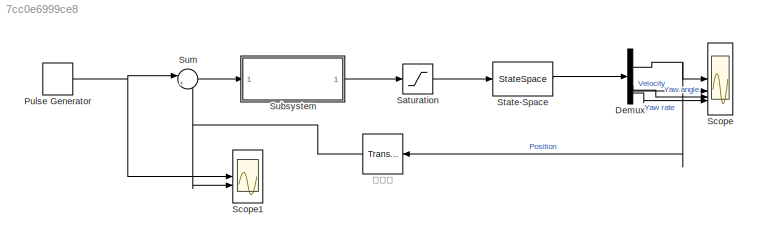
MODEL slx_7cc0e6999ce8
KIND model
CONFIG AbsTol = auto
CONFIG EnableMultiTasking = off
CONFIG FixedStep = 0.01
CONFIG MaxStep = auto
CONFIG MinStep = auto
CONFIG RelTol = 1e-3
CONFIG SampleTimeConstraint = Unconstrained
CONFIG SolverName = FixedStepAuto
CONFIG StartTime = 0.0
CONFIG StopTime = 10.0
BLOCK [Demux] Demux
BLOCK [DiscretePulseGenerator] Pulse Generator
  Amplitude = 4
  Period = 7
  PhaseDelay = 0.5
  PulseType = Time based
  PulseWidth = 50
BLOCK [Saturate] Saturation
  LowerLimit = -48.7
  UpperLimit = 48.7
BLOCK [Scope] Scope
  Floating = off
  NumInputPorts = 4
  ScopeSpecificationString = Simulink.scopes.TimeScopeBlockCfg('CurrentConfiguration', extmgr.ConfigurationSet(extmgr.Configuration('Core','General UI',true),extmgr.Configuration('Core','Source UI',true),extmgr.Configuration('Sources','WiredSimulink',true),extmgr.Configuration('Visuals','Time Domain',true,'SerializedDisplays',{struct('MinYLimReal','-1.34103','MaxYLimReal','5.34103','YLabelReal','','MinYLimMag','0.00000','MaxY...<+3780ch>
BLOCK [Scope] Scope1
  Floating = off
  NumInputPorts = 2
  ScopeSpecificationString = Simulink.scopes.TimeScopeBlockCfg('CurrentConfiguration', extmgr.ConfigurationSet(extmgr.Configuration('Core','General UI',true),extmgr.Configuration('Core','Source UI',true),extmgr.Configuration('Sources','WiredSimulink',true,'DataLoggingVariableName','ScopeData1'),extmgr.Configuration('Visuals','Time Domain',true,'SerializedDisplays',{struct('MinYLimReal','-2.01899','MaxYLimReal','6.01721','YLab...<+1481ch>
BLOCK [StateSpace] State-Space
  A = A
  B = B
  C = C
  D = D
  InitialCondition = 0
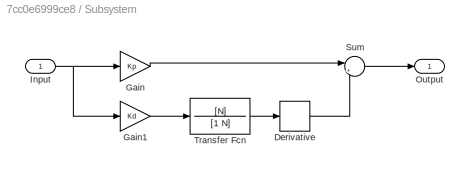
BLOCK [SubSystem] Subsystem
BLOCK [Derivative] Subsystem/Derivative
BLOCK [Gain] Subsystem/Gain
  Gain = Kp
BLOCK [Gain] Subsystem/Gain1
  Gain = Kd
BLOCK [Inport] Subsystem/Input
  IconDisplay = Signal name
BLOCK [Outport] Subsystem/Output
  IconDisplay = Signal name
BLOCK [Sum] Subsystem/Sum
  Inputs = |++
BLOCK [TransferFcn] Subsystem/Transfer Fcn
  Denominator = [1 N]
  Numerator = [N]
BLOCK [Sum] Sum
  Inputs = |+-
BLOCK [TransportDelay] 延遲器
  DelayTime = 0.03
NET Demux:1 -> Scope:1, 延遲器:1
LINE Demux:2 -> Scope:2
LINE Demux:3 -> Scope:3
LINE Demux:4 -> Scope:4
NET Pulse Generator:1 -> Scope1:1, Sum:1
LINE Saturation:1 -> State-Space:1
LINE State-Space:1 -> Demux:1
LINE Subsystem/Derivative:1 -> Subsystem/Sum:2
LINE Subsystem/Gain1:1 -> Subsystem/Transfer Fcn:1
LINE Subsystem/Gain:1 -> Subsystem/Sum:1
NET Subsystem/Input:1 -> Subsystem/Gain1:1, Subsystem/Gain:1
LINE Subsystem/Sum:1 -> Subsystem/Output:1
LINE Subsystem/Transfer Fcn:1 -> Subsystem/Derivative:1
LINE Subsystem:1 -> Saturation:1
LINE Sum:1 -> Subsystem:1
NET 延遲器:1 -> Scope1:2, Sum:2
note: NET lines group one-source signal fan-out (src -> all destinations, sorted); 1:1 wires keep LINE
